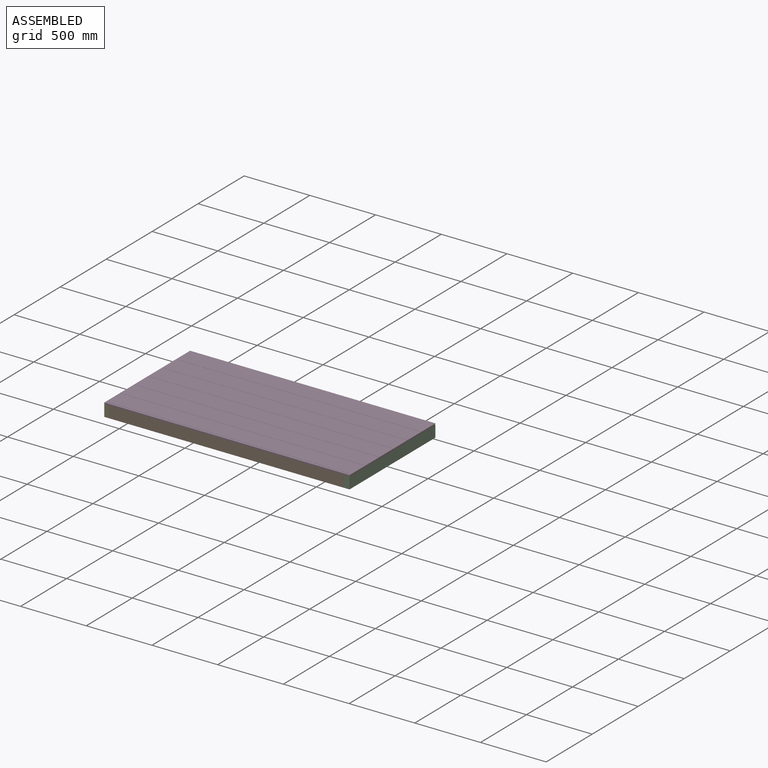
[diagram: assembled view]
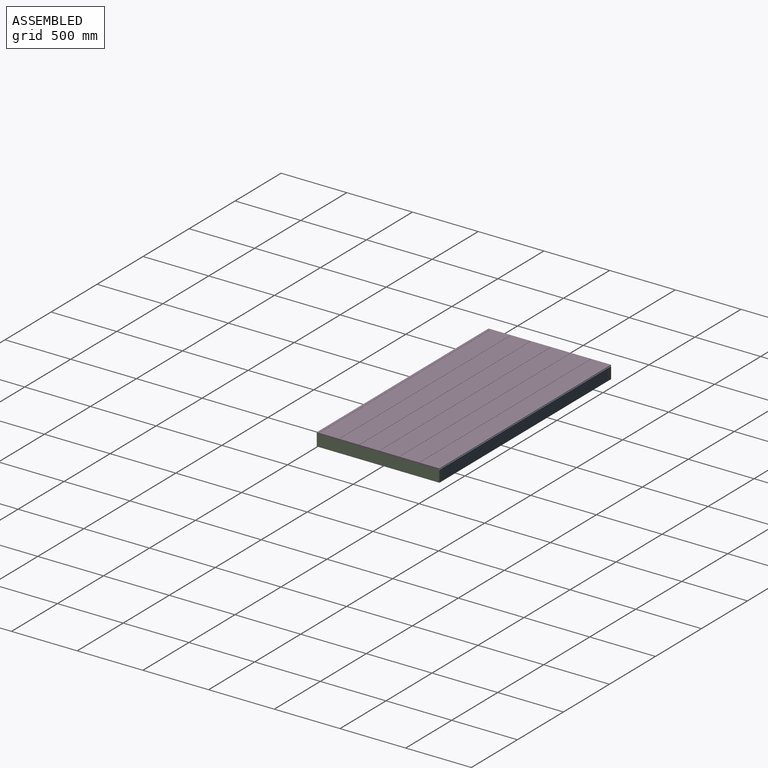
[diagram: assembled view, second angle]
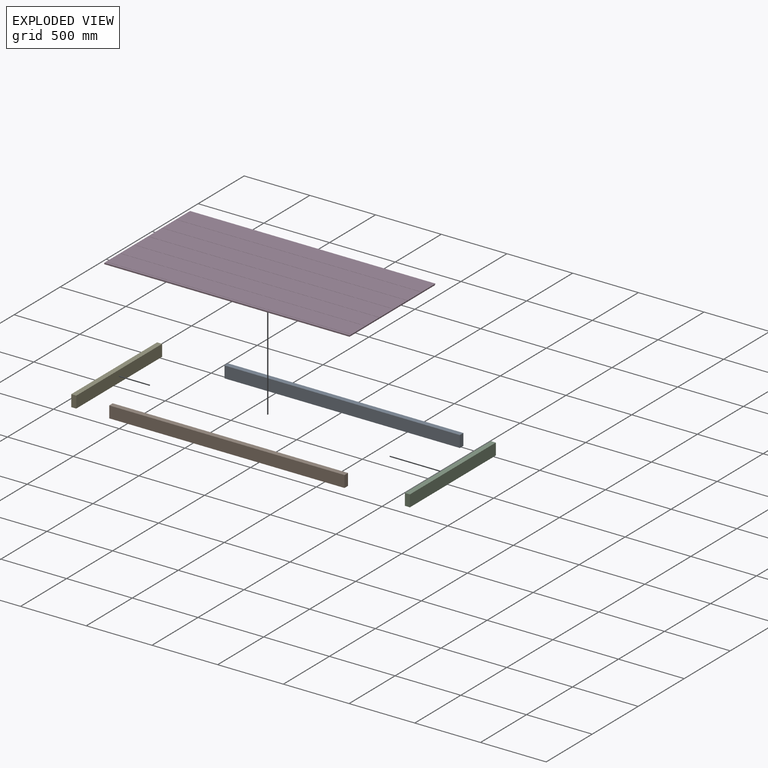
[diagram: exploded view]
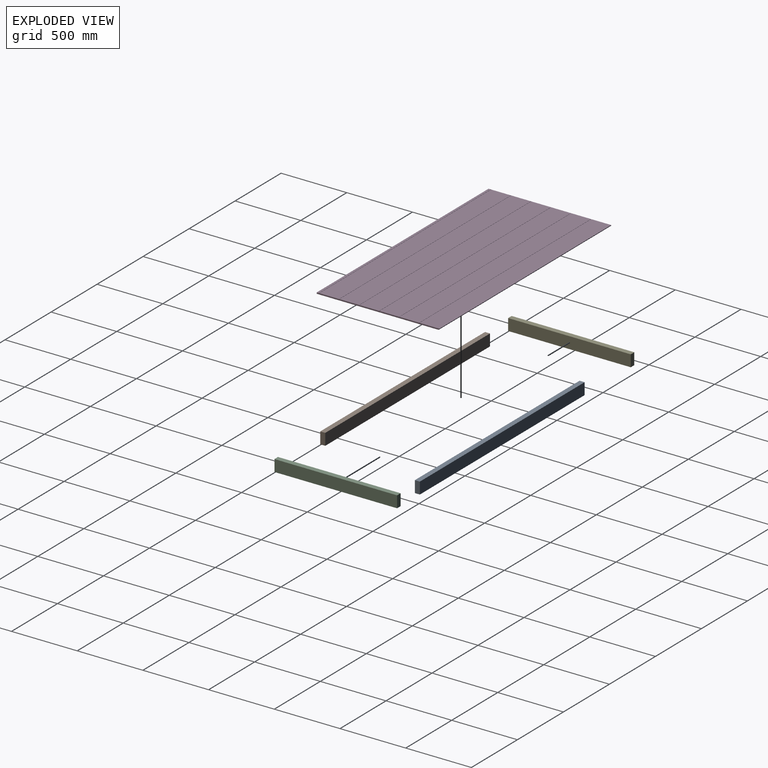
[diagram: exploded view, second angle]
ASSEMBLY  parts=5 mates=4
PART A: 6 faces, bbox 38.1x1790.7x88.9 mm
  f0: plane 1790.7x88.9mm, normal (-1,0,0), area 159193.2mm2, adj f1,f3,f4,f5
  f1: plane 1790.7x38.1mm, normal (0,0,-1), area 68225.7mm2, adj f0,f2,f4,f5
  f2: plane 1790.7x88.9mm, normal (1,0,0), area 159193.2mm2, adj f1,f3,f4,f5
  f3: plane 1790.7x38.1mm, normal (0,0,1), area 68225.7mm2, adj f0,f2,f4,f5
  f4: plane 88.9x38.1mm, normal (0,-1,0), area 3387.1mm2, adj f0,f1,f2,f3
  f5: plane 88.9x38.1mm, normal (0,1,0), area 3387.1mm2, adj f0,f1,f2,f3
PART B: same geometry as A
PART C: 6 faces, bbox 38.1x933.5x88.9 mm
  f0: plane 933.45x88.9mm, normal (-1,0,0), area 82983.7mm2, adj f1,f3,f4,f5
  f1: plane 933.45x38.1mm, normal (0,0,-1), area 35564.4mm2, adj f0,f2,f4,f5
  f2: plane 933.45x88.9mm, normal (1,0,0), area 82983.7mm2, adj f1,f3,f4,f5
  f3: plane 933.45x38.1mm, normal (0,0,1), area 35564.4mm2, adj f0,f2,f4,f5
  f4: plane 88.9x38.1mm, normal (0,-1,0), area 3387.1mm2, adj f0,f1,f2,f3
  f5: plane 88.9x38.1mm, normal (0,1,0), area 3387.1mm2, adj f0,f1,f2,f3
PART D: 32 faces, bbox 933.5x1866.9x9.5 mm
  f0: plane 1866.9x18.26mm, normal (0,0,1), area 34082.6mm2, adj f8,f9,f29,f31
  f1: plane 1866.9x927.1mm, normal (0,0,-1), area 1730803mm2, adj f8,f9,f12,f31
  f2: plane 1866.9x150.81mm, normal (0,0,1), area 281551.9mm2, adj f9,f26,f28,f31
  f3: plane 1866.9x150.81mm, normal (0,0,1), area 281551.9mm2, adj f9,f23,f25,f31
  f4: plane 1866.9x150.81mm, normal (0,0,1), area 281551.9mm2, adj f9,f20,f22,f31
  f5: plane 1866.9x150.81mm, normal (0,0,1), area 281551.9mm2, adj f9,f17,f19,f31
  f6: plane 1866.9x150.81mm, normal (0,0,1), area 281551.9mm2, adj f9,f14,f16,f31
  f7: plane 1866.9x151.61mm, normal (0,0,1), area 283033.7mm2, adj f9,f10,f13,f31
  f8: plane 1866.9x9.53mm, normal (-1,0,0), area 17782.2mm2, adj f0,f1,f9,f31
  f9: plane 933.45x9.53mm, normal (0,-1,0), area 8845.7mm2, adj f0,f1,f2,f3,f4,f5,f6,f7
  f10: plane 1866.9x4.76mm, normal (1,0,0), area 8891.1mm2, adj f7,f9,f11,f31
  f11: plane 1866.9x6.35mm, normal (0,0,-1), area 11854.8mm2, adj f9,f10,f12,f31
  f12: plane 1866.9x4.76mm, normal (1,0,0), area 8891.1mm2, adj f1,f9,f11,f31
  f13: plane 1866.9x1.59mm, normal (-1,0,0), area 2963.7mm2, adj f7,f9,f15,f31
  f14: plane 1866.9x1.59mm, normal (1,0,0), area 2963.7mm2, adj f6,f9,f15,f31
  f15: plane 1866.9x1.59mm, normal (0,0,1), area 2963.7mm2, adj f9,f13,f14,f31
  f16: plane 1866.9x1.59mm, normal (-1,0,0), area 2963.7mm2, adj f6,f9,f18,f31
  f17: plane 1866.9x1.59mm, normal (1,0,0), area 2963.7mm2, adj f5,f9,f18,f31
  f18: plane 1866.9x1.59mm, normal (0,0,1), area 2963.7mm2, adj f9,f16,f17,f31
  f19: plane 1866.9x1.59mm, normal (-1,0,0), area 2963.7mm2, adj f5,f9,f21,f31
  f20: plane 1866.9x1.59mm, normal (1,0,0), area 2963.7mm2, adj f4,f9,f21,f31
  f21: plane 1866.9x1.59mm, normal (0,0,1), area 2963.7mm2, adj f9,f19,f20,f31
  f22: plane 1866.9x1.59mm, normal (-1,0,0), area 2963.7mm2, adj f4,f9,f24,f31
  f23: plane 1866.9x1.59mm, normal (1,0,0), area 2963.7mm2, adj f3,f9,f24,f31
  f24: plane 1866.9x1.59mm, normal (0,0,1), area 2963.7mm2, adj f9,f22,f23,f31
  f25: plane 1866.9x1.59mm, normal (-1,0,0), area 2963.7mm2, adj f3,f9,f27,f31
  f26: plane 1866.9x1.59mm, normal (1,0,0), area 2963.7mm2, adj f2,f9,f27,f31
  f27: plane 1866.9x1.59mm, normal (0,0,1), area 2963.7mm2, adj f9,f25,f26,f31
  f28: plane 1866.9x1.59mm, normal (-1,0,0), area 2963.7mm2, adj f2,f9,f30,f31
  f29: plane 1866.9x1.59mm, normal (1,0,0), area 2963.7mm2, adj f0,f9,f30,f31
  f30: plane 1866.9x1.59mm, normal (0,0,1), area 2963.7mm2, adj f9,f28,f29,f31
  f31: plane 933.45x9.53mm, normal (0,1,0), area 8845.7mm2, adj f0,f1,f2,f3,f4,f5,f6,f7
PART E: same geometry as C
PLACE A rot(axis=(0.71,-0.71,0),180deg) t=(-703.8,448.73,22.65)mm
PLACE B rot(axis=(0,0,1),90deg) t=(-703.8,-448.73,0)mm
PLACE C t=(209.55,0,0)mm
PLACE D rot(axis=(0,0,1),90deg) t=(-294.13,-142.88,60.54)mm
PLACE E t=(-1619.25,0,0)mm
MATE fastened A.f4 <-> C.f0  axis (1,0,0) through (191.55,466.73,11.32)mm
MATE fastened D.f1 <-> E.f3  axis (0,0,-1) through (-1637.25,-466.73,55.77)mm
MATE fastened B.f4 <-> C.f0  axis (1,0,0) through (191.55,-466.73,11.32)mm
MATE fastened E.f2 <-> B.f5  axis (1,0,0) through (-1599.15,-466.73,11.32)mm
